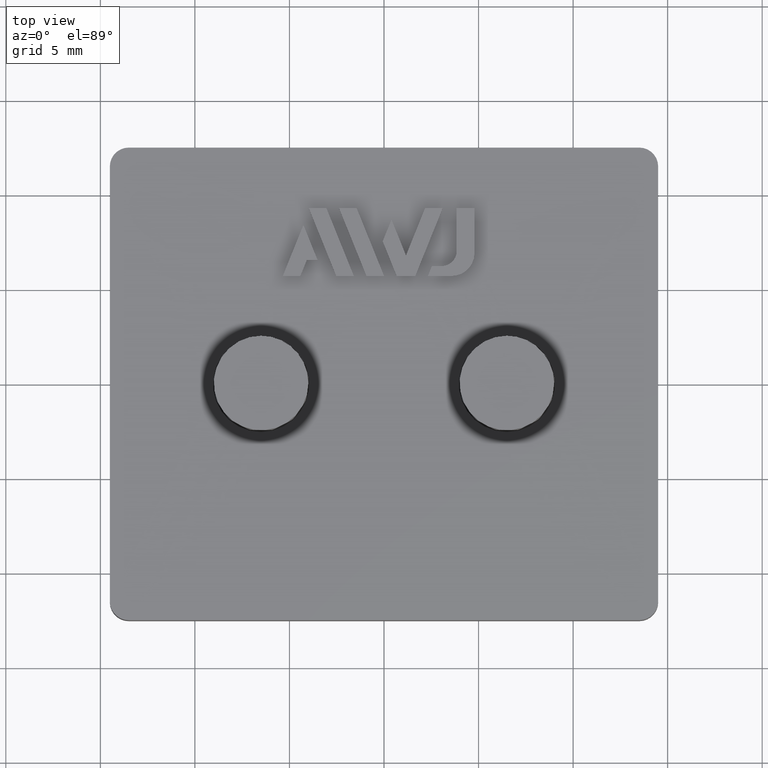
[diagram: clean part render]
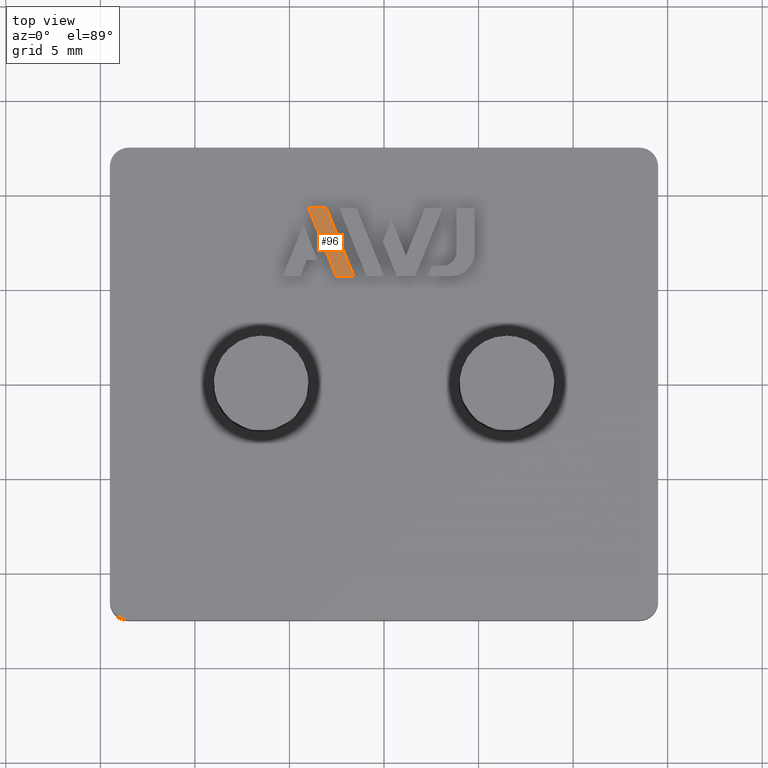
[diagram: same view with one face highlighted and labeled with its STEP entity id]
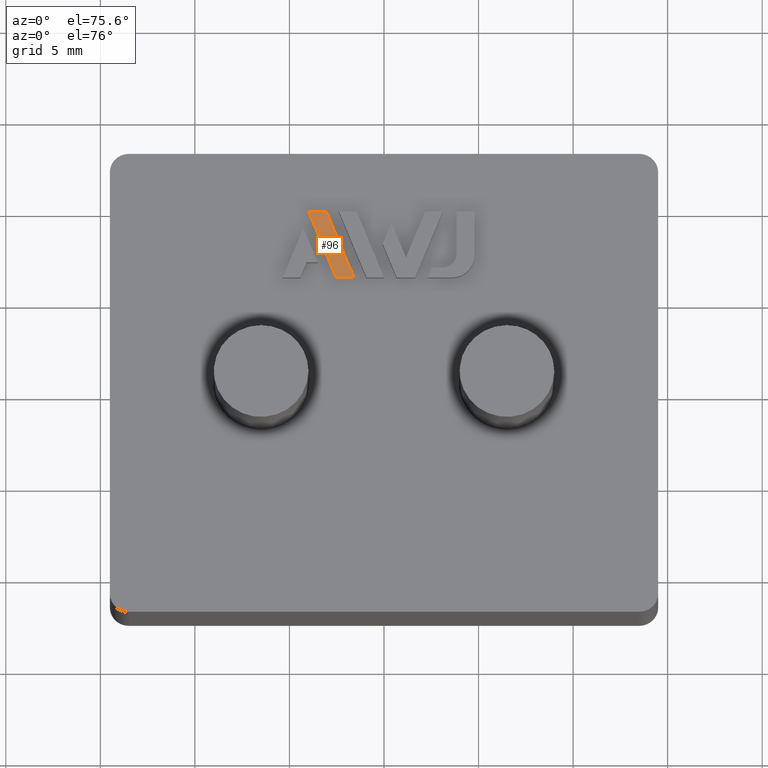
[diagram: same view with one face highlighted and labeled with its STEP entity id]
A machine part, top view. The second image highlights one B-rep face of the part: STEP entity #96.
A second angle (auxiliary view) of the same face is appended — the face is thin or edge-on in the first view.
In plain terms, the highlighted planar face has unit normal (0, -0, 1).
Its self-contained STEP definition (entity closure, byte-faithful):
#96 = ADVANCED_FACE( '', ( #188 ), #189, .T. );
#188 = FACE_OUTER_BOUND( '', #321, .T. );
#189 = PLANE( '', #322 );
#321 = EDGE_LOOP( '', ( #607, #608, #609, #610 ) );
#322 = AXIS2_PLACEMENT_3D( '', #611, #612, #613 );
#607 = ORIENTED_EDGE( '', *, *, #978, .T. );
#608 = ORIENTED_EDGE( '', *, *, #979, .T. );
#609 = ORIENTED_EDGE( '', *, *, #980, .T. );
#610 = ORIENTED_EDGE( '', *, *, #981, .T. );
#611 = CARTESIAN_POINT( '', ( -3.05206261720168, 9.29736617046469, 3.19999999999998 ) );
#612 = DIRECTION( '', ( 5.03761576923732E-015, -3.02861812907023E-015, 1.00000000000000 ) );
#613 = DIRECTION( '', ( -1.00000000000000, 3.08454813956191E-031, 5.03761576923732E-015 ) );
#978 = EDGE_CURVE( '', #1203, #1204, #1205, .T. );
#979 = EDGE_CURVE( '', #1204, #1206, #1207, .T. );
#980 = EDGE_CURVE( '', #1206, #1208, #1209, .T. );
#981 = EDGE_CURVE( '', #1208, #1203, #1210, .T. );
#1203 = VERTEX_POINT( '', #1533 );
#1204 = VERTEX_POINT( '', #1534 );
#1205 = LINE( '', #1535, #1536 );
#1206 = VERTEX_POINT( '', #1537 );
#1207 = LINE( '', #1538, #1539 );
#1208 = VERTEX_POINT( '', #1540 );
#1209 = LINE( '', #1541, #1542 );
#1210 = LINE( '', #1543, #1544 );
#1533 = CARTESIAN_POINT( '', ( -1.59847678860039, 5.69999999999999, 3.19999999999999 ) );
#1534 = CARTESIAN_POINT( '', ( -3.05206261720168, 9.29736617046469, 3.19999999999998 ) );
#1535 = CARTESIAN_POINT( '', ( -1.59847678860039, 5.69999999999999, 3.19999999999998 ) );
#1536 = VECTOR( '', #1782, 1000.00000000000 );
#1537 = CARTESIAN_POINT( '', ( -3.98137590013294, 9.29736617046469, 3.19999999999999 ) );
#1538 = CARTESIAN_POINT( '', ( -3.05206261720168, 9.29736617046469, 3.19999999999998 ) );
#1539 = VECTOR( '', #1783, 1000.00000000000 );
#1540 = CARTESIAN_POINT( '', ( -2.52799443113673, 5.69999999999999, 3.19999999999997 ) );
#1541 = CARTESIAN_POINT( '', ( -3.98137590013294, 9.29736617046469, 3.19999999999999 ) );
#1542 = VECTOR( '', #1784, 1000.00000000000 );
#1543 = CARTESIAN_POINT( '', ( -2.52799443113673, 5.69999999999999, 3.19999999999999 ) );
#1544 = VECTOR( '', #1785, 1000.00000000000 );
#1782 = DIRECTION( '', ( -0.374641058409020, 0.927169929060563, 4.69534135952661E-015 ) );
#1783 = DIRECTION( '', ( -1.00000000000000, 2.95502172071581E-031, 5.03761576923732E-015 ) );
#1784 = DIRECTION( '', ( 0.374595778945159, -0.927188223823226, -4.69516866683532E-015 ) );
#1785 = DIRECTION( '', ( 1.00000000000000, -3.08454813956191E-031, -5.03761576923732E-015 ) );